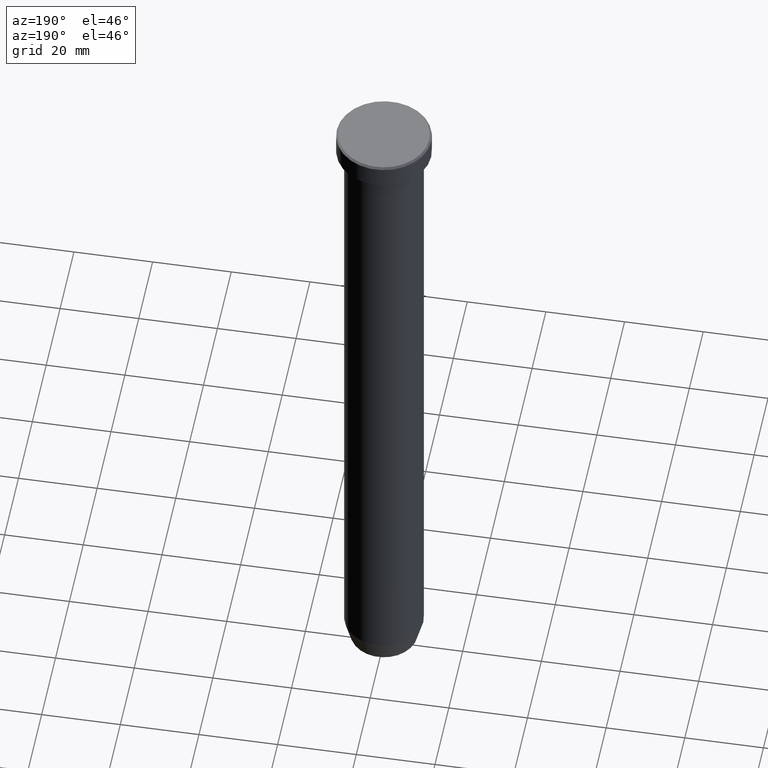
[diagram: clean part render]
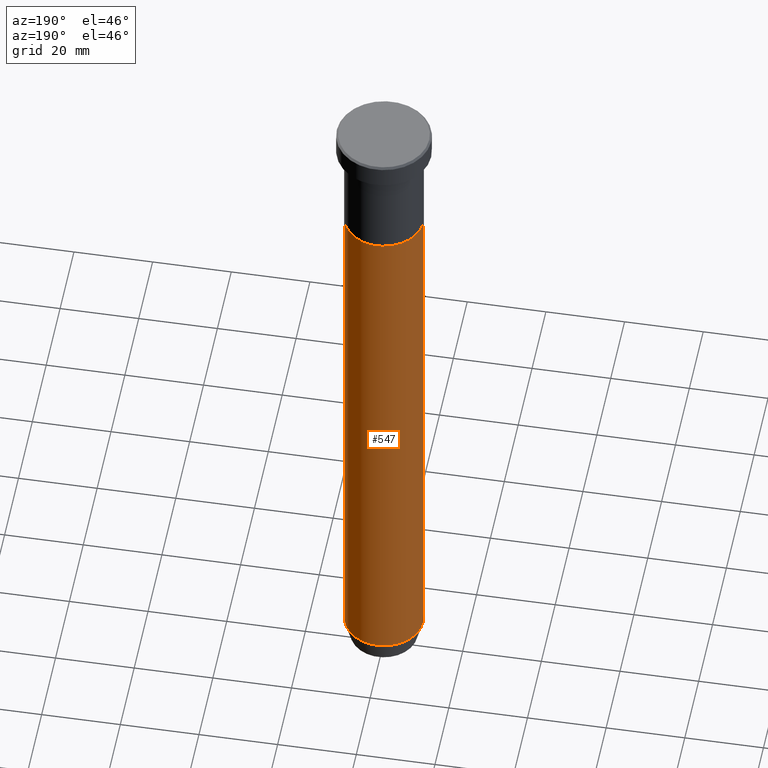
[diagram: same view with one face highlighted and labeled with its STEP entity id]
A machine part, auxiliary view. The second image highlights one B-rep face of the part: STEP entity #547.
In plain terms, the highlighted cylindrical surface (partial cylindrical patch) has radius 10 mm, axis along (-0, -0, 1).
Its self-contained STEP definition (entity closure, byte-faithful):
#9 = FACE_OUTER_BOUND ( 'NONE', #159, .T. ) ;
#17 = AXIS2_PLACEMENT_3D ( 'NONE', #179, #90, #456 ) ;
#34 = CIRCLE ( 'NONE', #72, 10.00000000000000000 ) ;
#39 = DIRECTION ( 'NONE',  ( 1.000000000000000000, 0.000000000000000000, 0.000000000000000000 ) ) ;
#72 = AXIS2_PLACEMENT_3D ( 'NONE', #186, #305, #397 ) ;
#90 = DIRECTION ( 'NONE',  ( -0.000000000000000000, -0.000000000000000000, 1.000000000000000000 ) ) ;
#115 = EDGE_CURVE ( 'NONE', #207, #210, #550, .T. ) ;
#123 = DIRECTION ( 'NONE',  ( -0.000000000000000000, -0.000000000000000000, 1.000000000000000000 ) ) ;
#159 = EDGE_LOOP ( 'NONE', ( #287, #386, #544, #209 ) ) ;
#163 = VERTEX_POINT ( 'NONE', #301 ) ;
#173 = CARTESIAN_POINT ( 'NONE',  ( -9.999999999999998224, 1.224646799147353059E-15, 0.000000000000000000 ) ) ;
#179 = CARTESIAN_POINT ( 'NONE',  ( 0.000000000000000000, 0.000000000000000000, 0.000000000000000000 ) ) ;
#186 = CARTESIAN_POINT ( 'NONE',  ( 0.000000000000000000, 0.000000000000000000, -30.00000000000000000 ) ) ;
#196 = EDGE_CURVE ( 'NONE', #210, #353, #34, .T. ) ;
#203 = CIRCLE ( 'NONE', #568, 9.999999999999998224 ) ;
#207 = VERTEX_POINT ( 'NONE', #546 ) ;
#209 = ORIENTED_EDGE ( 'NONE', *, *, #115, .F. ) ;
#210 = VERTEX_POINT ( 'NONE', #284 ) ;
#240 = VECTOR ( 'NONE', #354, 1000.000000000000000 ) ;
#284 = CARTESIAN_POINT ( 'NONE',  ( 10.00000000000000000, 0.000000000000000000, -30.00000000000000000 ) ) ;
#287 = ORIENTED_EDGE ( 'NONE', *, *, #445, .T. ) ;
#300 = VECTOR ( 'NONE', #366, 1000.000000000000000 ) ;
#301 = CARTESIAN_POINT ( 'NONE',  ( -9.999999999999998224, 1.224646799147353059E-15, -174.0000000000000000 ) ) ;
#305 = DIRECTION ( 'NONE',  ( -0.000000000000000000, -0.000000000000000000, 1.000000000000000000 ) ) ;
#353 = VERTEX_POINT ( 'NONE', #534 ) ;
#354 = DIRECTION ( 'NONE',  ( -0.000000000000000000, -0.000000000000000000, 1.000000000000000000 ) ) ;
#364 = CARTESIAN_POINT ( 'NONE',  ( 9.999999999999998224, 0.000000000000000000, 0.000000000000000000 ) ) ;
#366 = DIRECTION ( 'NONE',  ( -0.000000000000000000, -0.000000000000000000, 1.000000000000000000 ) ) ;
#386 = ORIENTED_EDGE ( 'NONE', *, *, #415, .T. ) ;
#397 = DIRECTION ( 'NONE',  ( 1.000000000000000000, 0.000000000000000000, 0.000000000000000000 ) ) ;
#415 = EDGE_CURVE ( 'NONE', #163, #353, #542, .T. ) ;
#445 = EDGE_CURVE ( 'NONE', #207, #163, #203, .T. ) ;
#456 = DIRECTION ( 'NONE',  ( 1.000000000000000000, 0.000000000000000000, 0.000000000000000000 ) ) ;
#534 = CARTESIAN_POINT ( 'NONE',  ( -10.00000000000000000, 1.224646799147353256E-15, -30.00000000000000000 ) ) ;
#539 = CARTESIAN_POINT ( 'NONE',  ( 0.000000000000000000, 0.000000000000000000, -174.0000000000000000 ) ) ;
#542 = LINE ( 'NONE', #173, #240 ) ;
#544 = ORIENTED_EDGE ( 'NONE', *, *, #196, .F. ) ;
#546 = CARTESIAN_POINT ( 'NONE',  ( 9.999999999999998224, 0.000000000000000000, -174.0000000000000000 ) ) ;
#547 = ADVANCED_FACE ( 'NONE', ( #9 ), #596, .T. ) ;
#550 = LINE ( 'NONE', #364, #300 ) ;
#568 = AXIS2_PLACEMENT_3D ( 'NONE', #539, #123, #39 ) ;
#596 = CYLINDRICAL_SURFACE ( 'NONE', #17, 9.999999999999998224 ) ;